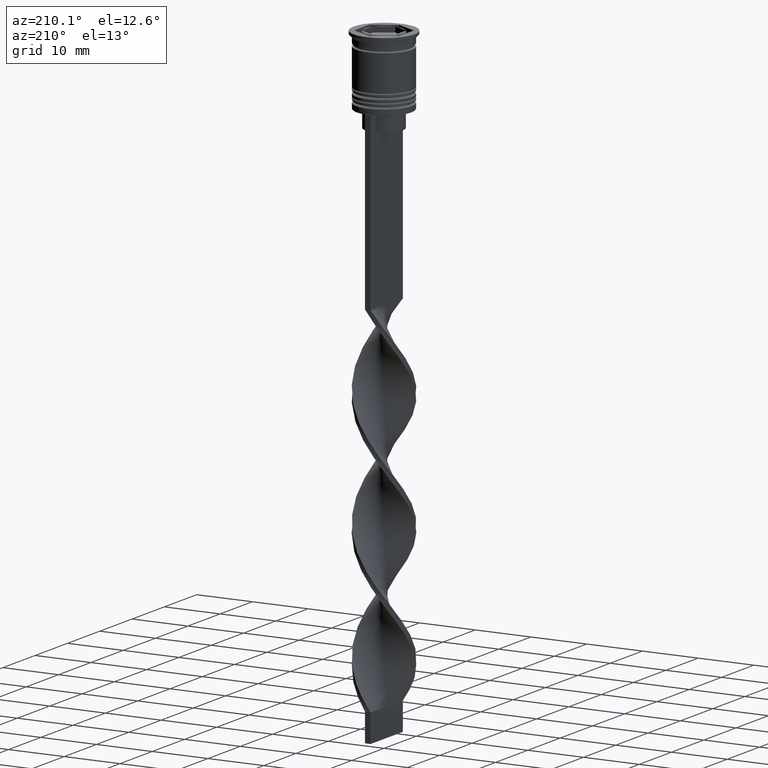
[diagram: clean part render]
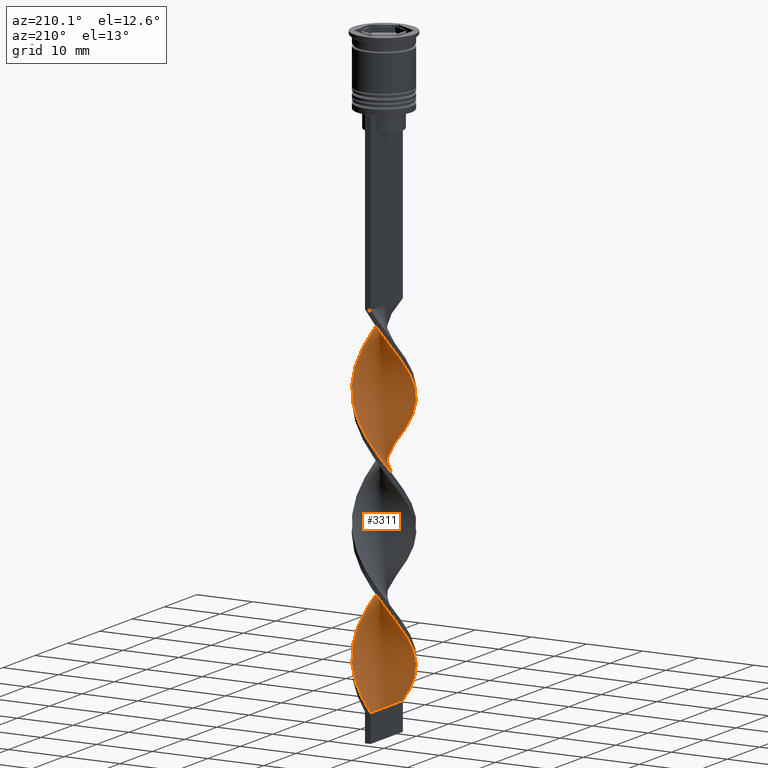
[diagram: same view with one face highlighted and labeled with its STEP entity id]
A machine part, auxiliary view. The second image highlights one B-rep face of the part: STEP entity #3311.
In plain terms, the highlighted face is a freeform B-spline surface patch.
Its self-contained STEP definition (entity closure, byte-faithful):
#8 = CARTESIAN_POINT ( 'NONE',  ( -4.104038128678483943, 2.962961240565979537, -70.57692307692306599 ) ) ;
#15 = CARTESIAN_POINT ( 'NONE',  ( -4.769828676396804745, -1.694403338218441357, -77.14102564102563520 ) ) ;
#29 = CARTESIAN_POINT ( 'NONE',  ( 1.107109916111302717, -4.939289008388868751, -86.98717948717948900 ) ) ;
#35 = CARTESIAN_POINT ( 'NONE',  ( -1.107109916111301828, 4.939289008388868751, -65.65384615384614619 ) ) ;
#40 = VERTEX_POINT ( 'NONE', #2713 ) ;
#50 = CARTESIAN_POINT ( 'NONE',  ( 5.036723384328412934, 0.5036723384328410935, -54.16666666666665719 ) ) ;
#69 = CARTESIAN_POINT ( 'NONE',  ( 4.104038128678483943, -2.962961240565977761, -91.91025641025643722 ) ) ;
#109 =( BOUNDED_CURVE ( )  B_SPLINE_CURVE ( 2, ( #1605, #1852, #2784, #3633, #2468, #2993, #422, #2167, #756, #2733, #151, #1291, #166, #2763, #1342, #1305, #1060, #1562, #2433, #2488, #3336, #2505, #3389, #288, #1396, #303, #2836, #2543, #1098, #1148, #2302, #3081, #2241, #8, #1411, #2595, #2000, #3095, #1373, #2574, #526, #3110, #1671, #3371, #3675, #510, #808, #2855, #3131, #2798, #2814, #252, #232, #29, #1167, #1112, #1974, #1959, #1654, #2519, #2256, #1425, #1728, #3652, #827, #545, #3355, #3148, #1447, #1694, #273, #3432, #2557, #795, #3689, #1128, #2275, #870, #2018 ),
 .UNSPECIFIED., .F., .T. ) 
 B_SPLINE_CURVE_WITH_KNOTS ( ( 3, 2, 2, 2, 2, 2, 2, 2, 2, 2, 2, 2, 2, 2, 2, 2, 2, 2, 2, 2, 2, 2, 2, 2, 2, 2, 2, 2, 2, 2, 2, 2, 2, 2, 2, 2, 2, 2, 2, 3 ),
 ( 0.000000000000000000, 0.01923076923076923184, 0.03846153846153846367, 0.05769230769230768857, 0.07692307692307692735, 0.09615384615384615918, 0.1153846153846153771, 0.1346153846153846090, 0.1538461538461538547, 0.1730769230769230449, 0.1923076923076923184, 0.2115384615384615363, 0.2307692307692307543, 0.2500000000000000000, 0.2692307692307692180, 0.2884615384615384359, 0.3076923076923077094, 0.3269230769230769273, 0.3461538461538460898, 0.3653846153846153633, 0.3846153846153846367, 0.4038461538461539102, 0.4230769230769230727, 0.4423076923076922906, 0.4615384615384615086, 0.4807692307692307820, 0.5000000000000000000, 0.5192307692307692735, 0.5384615384615384359, 0.5576923076923077094, 0.5769230769230768718, 0.5961538461538461453, 0.6153846153846154188, 0.6346153846153845812, 0.6538461538461538547, 0.6730769230769230171, 0.6923076923076921796, 0.7115384615384615641, 0.7307692307692307265, 0.7500000000000000000 ),
 .UNSPECIFIED. ) 
 CURVE ( )  GEOMETRIC_REPRESENTATION_ITEM ( )  RATIONAL_B_SPLINE_CURVE ( ( 1.000000000000000000, 0.9927088740980539727, 1.000000000000000000, 0.9927088740980539727, 1.000000000000000000, 0.9927088740980539727, 1.000000000000000000, 0.9927088740980539727, 1.000000000000000000, 0.9927088740980539727, 1.000000000000000000, 0.9927088740980539727, 1.000000000000000000, 0.9927088740980539727, 1.000000000000000000, 0.9927088740980539727, 1.000000000000000000, 0.9927088740980539727, 1.000000000000000000, 0.9927088740980539727, 1.000000000000000000, 0.9927088740980539727, 1.000000000000000000, 0.9927088740980539727, 1.000000000000000000, 0.9927088740980539727, 1.000000000000000000, 0.9927088740980539727, 1.000000000000000000, 0.9927088740980539727, 1.000000000000000000, 0.9927088740980539727, 1.000000000000000000, 0.9927088740980539727, 1.000000000000000000, 0.9927088740980539727, 1.000000000000000000, 0.9927088740980539727, 1.000000000000000000, 0.9927088740980539727, 1.000000000000000000, 0.9927088740980539727, 1.000000000000000000, 0.9927088740980539727, 1.000000000000000000, 0.9927088740980539727, 1.000000000000000000, 0.9927088740980539727, 1.000000000000000000, 0.9927088740980539727, 1.000000000000000000, 0.9927088740980539727, 1.000000000000000000, 0.9927088740980539727, 1.000000000000000000, 0.9927088740980539727, 1.000000000000000000, 0.9927088740980539727, 1.000000000000000000, 0.9927088740980539727, 1.000000000000000000, 0.9927088740980539727, 1.000000000000000000, 0.9927088740980539727, 1.000000000000000000, 0.9927088740980539727, 1.000000000000000000, 0.9927088740980539727, 1.000000000000000000, 0.9927088740980539727, 1.000000000000000000, 0.9927088740980539727, 1.000000000000000000, 0.9927088740980539727, 1.000000000000000000, 0.9927088740980539727, 1.000000000000000000, 0.9927088740980539727, 1.000000000000000000 ) ) 
 REPRESENTATION_ITEM ( '' )  );
#119 = CARTESIAN_POINT ( 'NONE',  ( -2.446670785446253049, 4.431260581638921003, -90.26923076923075939 ) ) ;
#141 = CARTESIAN_POINT ( 'NONE',  ( -4.769828676396804745, 1.694403338218444244, -95.19230769230769340 ) ) ;
#145 = CARTESIAN_POINT ( 'NONE',  ( -0.5000000000000006661, -5.000000000000000888, -64.83333333333332860 ) ) ;
#151 = CARTESIAN_POINT ( 'NONE',  ( 4.852383656948341617, -1.305516313869971246, -51.70512820512820440 ) ) ;
#157 = CARTESIAN_POINT ( 'NONE',  ( -4.225728863414810910, 2.786661774892328580, -50.88461538461538680 ) ) ;
#166 = CARTESIAN_POINT ( 'NONE',  ( 5.023812710617931110, -0.1063289642275889874, -53.34615384615383959 ) ) ;
#173 = CARTESIAN_POINT ( 'NONE',  ( 4.903276030362609283, -1.099037838325644945, -74.67948717948718240 ) ) ;
#193 = CARTESIAN_POINT ( 'NONE',  ( -1.315104909338222772, 4.888022846936949328, -45.96153846153845990 ) ) ;
#214 = CARTESIAN_POINT ( 'NONE',  ( -4.104038128678487496, -2.962961240565977761, -101.7564102564102484 ) ) ;
#228 = CARTESIAN_POINT ( 'NONE',  ( -5.010902036907449286, -0.7163302668880179302, -98.47435897435896379 ) ) ;
#232 = CARTESIAN_POINT ( 'NONE',  ( 0.5000000000000000000, -4.999999999999999112, -86.16666666666667140 ) ) ;
#237 = CARTESIAN_POINT ( 'NONE',  ( -2.446670785446253049, 4.431260581638921003, -47.60256410256408799 ) ) ;
#252 = CARTESIAN_POINT ( 'NONE',  ( -0.1071099161113053949, -5.060710991611129472, -85.34615384615385381 ) ) ;
#260 = CARTESIAN_POINT ( 'NONE',  ( -2.256988544190325019, 4.530813501584093572, -67.29487179487178139 ) ) ;
#267 = CARTESIAN_POINT ( 'NONE',  ( -4.852383656948343393, -1.305516313869969913, -99.29487179487178139 ) ) ;
#273 = CARTESIAN_POINT ( 'NONE',  ( 3.830886956102703245, 3.251815666602606569, -100.9358974358974308 ) ) ;
#279 = CARTESIAN_POINT ( 'NONE',  ( -5.010902036907448398, 0.7163302668880177082, -73.85897435897436480 ) ) ;
#285 = CARTESIAN_POINT ( 'NONE',  ( -3.275699201900569069, -3.859023582904238303, -103.3974358974358836 ) ) ;
#288 = CARTESIAN_POINT ( 'NONE',  ( 1.315104909338224104, 4.888022846936946664, -62.37179487179486870 ) ) ;
#296 = CARTESIAN_POINT ( 'NONE',  ( -5.023812710617931110, 0.1063289642275907221, -74.67948717948718240 ) ) ;
#303 = CARTESIAN_POINT ( 'NONE',  ( 0.1071099161113048537, 5.060710991611129472, -64.01282051282051100 ) ) ;
#312 = CARTESIAN_POINT ( 'NONE',  ( -2.766343873045448376, -4.194918542244166382, -104.2179487179487012 ) ) ;
#330 = CARTESIAN_POINT ( 'NONE',  ( -2.256988544190328572, -4.530813501584093572, -105.0384615384615330 ) ) ;
#364 = CARTESIAN_POINT ( 'NONE',  ( 5.023812710617931110, -0.1063289642275889874, -96.01282051282051100 ) ) ;
#385 = EDGE_CURVE ( 'NONE', #824, #3358, #673, .T. ) ;
#399 = CARTESIAN_POINT ( 'NONE',  ( 2.446670785446252161, -4.431260581638921892, -68.93589743589743080 ) ) ;
#407 = CARTESIAN_POINT ( 'NONE',  ( 1.107109916111302717, -4.939289008388868751, -86.98717948717948900 ) ) ;
#414 = CARTESIAN_POINT ( 'NONE',  ( -3.830886956102704133, 3.251815666602608346, -92.73076923076922640 ) ) ;
#417 = CARTESIAN_POINT ( 'NONE',  ( -4.769828676396803857, 1.694403338218444022, -52.52564102564102910 ) ) ;
#422 = CARTESIAN_POINT ( 'NONE',  ( 3.689868665289525396, -3.410992411735107588, -48.42307692307691269 ) ) ;
#423 = CARTESIAN_POINT ( 'NONE',  ( 4.903276030362607507, 1.099037838325641392, -97.65384615384614619 ) ) ;
#436 = CARTESIAN_POINT ( 'NONE',  ( -3.436045048790599132, 3.716969558312887667, -49.24358974358973740 ) ) ;
#441 = CARTESIAN_POINT ( 'NONE',  ( 1.315104909338221217, -4.888022846936949328, -67.29487179487178139 ) ) ;
#455 = CARTESIAN_POINT ( 'NONE',  ( 1.880887847392237688, -4.659641714287934278, -68.11538461538459899 ) ) ;
#460 = CARTESIAN_POINT ( 'NONE',  ( -4.104038128678487496, -2.962961240565977761, -59.08974358974358410 ) ) ;
#484 = CARTESIAN_POINT ( 'NONE',  ( -0.5000000000000006661, -5.000000000000000888, -107.5000000000000000 ) ) ;
#487 = CARTESIAN_POINT ( 'NONE',  ( -4.225728863414810910, 2.786661774892329024, -50.88461538461537970 ) ) ;
#505 = CARTESIAN_POINT ( 'NONE',  ( 3.436045048790597800, -3.716969558312888555, -70.57692307692306599 ) ) ;
#510 = CARTESIAN_POINT ( 'NONE',  ( -3.436045048790600909, -3.716969558312882782, -80.42307692307691980 ) ) ;
#516 = CARTESIAN_POINT ( 'NONE',  ( -4.497778769905806939, 2.240532556555386634, -51.70512820512820440 ) ) ;
#522 = CARTESIAN_POINT ( 'NONE',  ( -4.497778769905806939, 2.240532556555386634, -94.37179487179486159 ) ) ;
#526 = CARTESIAN_POINT ( 'NONE',  ( -4.903276030362609283, -1.099037838325638727, -76.32051282051281760 ) ) ;
#531 = CARTESIAN_POINT ( 'NONE',  ( -2.941357917118426535, -4.074115069975901449, -81.24358974358973740 ) ) ;
#539 = CARTESIAN_POINT ( 'NONE',  ( 3.830886956102704133, -3.251815666602608346, -71.39743589743588359 ) ) ;
#545 = CARTESIAN_POINT ( 'NONE',  ( 5.036723384328413822, 0.5036723384328410935, -96.83333333333332860 ) ) ;
#556 = CARTESIAN_POINT ( 'NONE',  ( -0.4999999999999993339, 4.999999999999999112, -64.83333333333332860 ) ) ;
#561 = CARTESIAN_POINT ( 'NONE',  ( 4.693865276989236612, 1.894702360851921119, -78.78205128205127039 ) ) ;
#572 = CARTESIAN_POINT ( 'NONE',  ( 5.023812710617931110, -0.1063289642275889874, -53.34615384615383959 ) ) ;
#578 = CARTESIAN_POINT ( 'NONE',  ( -0.5000000000000006661, -5.000000000000000888, -107.5000000000000000 ) ) ;
#589 = CARTESIAN_POINT ( 'NONE',  ( 2.941357917118426091, 4.074115069975901449, -59.91025641025640880 ) ) ;
#609 = CARTESIAN_POINT ( 'NONE',  ( -4.852383656948343393, -1.305516313869969913, -99.29487179487178139 ) ) ;
#673 = LINE ( 'NONE', #1825, #963 ) ;
#694 = CARTESIAN_POINT ( 'NONE',  ( -2.766343873045448376, -4.194918542244166382, -61.55128205128204399 ) ) ;
#698 = CARTESIAN_POINT ( 'NONE',  ( -4.398951702833861610, -2.428831800708950883, -58.26923076923076650 ) ) ;
#713 = CARTESIAN_POINT ( 'NONE',  ( 4.769828676396805633, -1.694403338218443800, -73.85897435897436480 ) ) ;
#732 = CARTESIAN_POINT ( 'NONE',  ( -4.852383656948343393, -1.305516313869969913, -56.62820512820513130 ) ) ;
#750 = CARTESIAN_POINT ( 'NONE',  ( 3.275699201900569513, 3.859023582904238303, -82.06410256410255499 ) ) ;
#756 = CARTESIAN_POINT ( 'NONE',  ( 4.398951702833859834, -2.428831800708950883, -50.06410256410256210 ) ) ;
#780 = CARTESIAN_POINT ( 'NONE',  ( -0.4999999999999997780, 1.666666666666666075, -107.5000000000000000 ) ) ;
#786 = CARTESIAN_POINT ( 'NONE',  ( -5.036723384328415598, 0.5036723384328417596, -96.83333333333332860 ) ) ;
#795 = CARTESIAN_POINT ( 'NONE',  ( 2.446670785446252605, 4.431260581638918339, -103.3974358974358836 ) ) ;
#804 = CARTESIAN_POINT ( 'NONE',  ( -1.315104909338222772, 4.888022846936949328, -88.62820512820512420 ) ) ;
#808 = CARTESIAN_POINT ( 'NONE',  ( -2.941357917118426535, -4.074115069975901449, -81.24358974358973740 ) ) ;
#815 = CARTESIAN_POINT ( 'NONE',  ( 3.830886956102703245, 3.251815666602606569, -58.26923076923076650 ) ) ;
#823 = CARTESIAN_POINT ( 'NONE',  ( -0.1071099161113027859, 5.060710991611131249, -86.98717948717948900 ) ) ;
#824 = VERTEX_POINT ( 'NONE', #3308 ) ;
#827 = CARTESIAN_POINT ( 'NONE',  ( 5.023812710617931110, -0.1063289642275889874, -96.01282051282051100 ) ) ;
#833 = CARTESIAN_POINT ( 'NONE',  ( -1.107109916111304937, -4.939289008388870528, -106.6794871794871682 ) ) ;
#840 = CARTESIAN_POINT ( 'NONE',  ( -2.941357917118425203, 4.074115069975904113, -91.08974358974359120 ) ) ;
#856 = CARTESIAN_POINT ( 'NONE',  ( 3.275699201900567736, -3.859023582904237415, -47.60256410256408799 ) ) ;
#870 = CARTESIAN_POINT ( 'NONE',  ( 0.1071099161113048537, 5.060710991611129472, -106.6794871794871824 ) ) ;
#877 = CARTESIAN_POINT ( 'NONE',  ( -1.880887847392241019, -4.659641714287931613, -82.88461538461537259 ) ) ;
#892 = CARTESIAN_POINT ( 'NONE',  ( -4.225728863414810910, -2.786661774892325028, -78.78205128205127039 ) ) ;
#911 = CARTESIAN_POINT ( 'NONE',  ( -0.7111074127247671850, -4.974366919274038068, -84.52564102564103621 ) ) ;
#931 = CARTESIAN_POINT ( 'NONE',  ( 1.880887847392238132, 4.659641714287932501, -104.2179487179487012 ) ) ;
#950 = CARTESIAN_POINT ( 'NONE',  ( 0.5000000000000000000, -4.999999999999999112, -86.16666666666667140 ) ) ;
#963 = VECTOR ( 'NONE', #1740, 1000.000000000000000 ) ;
#969 = CARTESIAN_POINT ( 'NONE',  ( -0.4999999999999993339, 4.999999999999999112, -107.5000000000000000 ) ) ;
#980 = CARTESIAN_POINT ( 'NONE',  ( -5.036723384328414710, 0.5036723384328417596, -54.16666666666665719 ) ) ;
#991 = CARTESIAN_POINT ( 'NONE',  ( 2.766343873045447044, -4.194918542244165494, -89.44871794871794179 ) ) ;
#998 = CARTESIAN_POINT ( 'NONE',  ( 0.7111074127247614118, -4.974366919274040733, -66.47435897435896379 ) ) ;
#1000 = CARTESIAN_POINT ( 'NONE',  ( -2.766343873045448376, -4.194918542244166382, -61.55128205128204399 ) ) ;
#1015 = CARTESIAN_POINT ( 'NONE',  ( -2.256988544190328572, -4.530813501584093572, -62.37179487179486870 ) ) ;
#1037 = CARTESIAN_POINT ( 'NONE',  ( 5.010902036907451063, 0.7163302668880160429, -77.14102564102563520 ) ) ;
#1060 = CARTESIAN_POINT ( 'NONE',  ( 4.497778769905805163, 2.240532556555384414, -56.62820512820513130 ) ) ;
#1069 = CARTESIAN_POINT ( 'NONE',  ( 4.225728863414809133, -2.786661774892331245, -72.21794871794871540 ) ) ;
#1089 = CARTESIAN_POINT ( 'NONE',  ( 1.682049230150819419, 4.735051254986480274, -84.52564102564103621 ) ) ;
#1098 = CARTESIAN_POINT ( 'NONE',  ( -1.682049230150812980, 4.735051254986481162, -66.47435897435896379 ) ) ;
#1104 = CARTESIAN_POINT ( 'NONE',  ( -0.1071099161113027859, 5.060710991611132137, -86.98717948717948900 ) ) ;
#1108 = CARTESIAN_POINT ( 'NONE',  ( -0.7111074127247628551, 4.974366919274039844, -87.80769230769230660 ) ) ;
#1112 = CARTESIAN_POINT ( 'NONE',  ( 2.256988544190326351, -4.530813501584092684, -88.62820512820512420 ) ) ;
#1120 = CARTESIAN_POINT ( 'NONE',  ( -4.398951702833861610, -2.428831800708950883, -100.9358974358974308 ) ) ;
#1124 = CARTESIAN_POINT ( 'NONE',  ( -2.446670785446253049, 4.431260581638920115, -90.26923076923077360 ) ) ;
#1128 = CARTESIAN_POINT ( 'NONE',  ( 1.315104909338224104, 4.888022846936946664, -105.0384615384615188 ) ) ;
#1135 = CARTESIAN_POINT ( 'NONE',  ( -5.023812710617932886, -0.1063289642275874608, -97.65384615384614619 ) ) ;
#1142 = CARTESIAN_POINT ( 'NONE',  ( -4.693865276989236612, -1.894702360851923784, -100.1153846153846132 ) ) ;
#1148 = CARTESIAN_POINT ( 'NONE',  ( -2.256988544190325019, 4.530813501584093572, -67.29487179487178139 ) ) ;
#1156 = CARTESIAN_POINT ( 'NONE',  ( 2.256988544190325907, -4.530813501584092684, -45.96153846153845279 ) ) ;
#1167 = CARTESIAN_POINT ( 'NONE',  ( 1.682049230150814534, -4.735051254986480274, -87.80769230769230660 ) ) ;
#1173 = CARTESIAN_POINT ( 'NONE',  ( -5.036723384328412934, -0.5036723384328404274, -75.49999999999998579 ) ) ;
#1187 = CARTESIAN_POINT ( 'NONE',  ( 4.769828676396803857, 1.694403338218442912, -55.80769230769230660 ) ) ;
#1210 = CARTESIAN_POINT ( 'NONE',  ( 4.852383656948341617, -1.305516313869971246, -94.37179487179486159 ) ) ;
#1229 = CARTESIAN_POINT ( 'NONE',  ( 4.769828676396803857, 1.694403338218442912, -98.47435897435896379 ) ) ;
#1249 = CARTESIAN_POINT ( 'NONE',  ( 4.398951702833859834, -2.428831800708950883, -92.73076923076922640 ) ) ;
#1259 = CARTESIAN_POINT ( 'NONE',  ( -2.941357917118425203, 4.074115069975904113, -91.08974358974359120 ) ) ;
#1269 = CARTESIAN_POINT ( 'NONE',  ( 4.225728863414809133, 2.786661774892327248, -100.1153846153846274 ) ) ;
#1280 = CARTESIAN_POINT ( 'NONE',  ( -0.7111074127247628551, 4.974366919274039844, -45.14102564102563520 ) ) ;
#1291 = CARTESIAN_POINT ( 'NONE',  ( 5.010902036907448398, -0.7163302668880181523, -52.52564102564102910 ) ) ;
#1298 = CARTESIAN_POINT ( 'NONE',  ( -1.315104909338222772, 4.888022846936949328, -45.96153846153845279 ) ) ;
#1305 = CARTESIAN_POINT ( 'NONE',  ( 4.769828676396803857, 1.694403338218442689, -55.80769230769230660 ) ) ;
#1311 = CARTESIAN_POINT ( 'NONE',  ( 5.023812710617932886, 0.1063289642275847546, -76.32051282051281760 ) ) ;
#1315 = CARTESIAN_POINT ( 'NONE',  ( -1.880887847392238132, 4.659641714287934278, -46.78205128205127750 ) ) ;
#1336 = CARTESIAN_POINT ( 'NONE',  ( -5.036723384328415598, 0.5036723384328417596, -54.16666666666666430 ) ) ;
#1342 = CARTESIAN_POINT ( 'NONE',  ( 4.903276030362607507, 1.099037838325641392, -54.98717948717948190 ) ) ;
#1351 = CARTESIAN_POINT ( 'NONE',  ( -0.5000000000000002220, -1.666666666666667851, -107.5000000000000000 ) ) ;
#1369 = CARTESIAN_POINT ( 'NONE',  ( -1.682049230150816532, -4.735051254986481162, -105.8589743589743506 ) ) ;
#1373 = CARTESIAN_POINT ( 'NONE',  ( -5.023812710617931110, 0.1063289642275907221, -74.67948717948718240 ) ) ;
#1378 = CARTESIAN_POINT ( 'NONE',  ( 1.107109916111305381, 4.939289008388870528, -85.34615384615383959 ) ) ;
#1396 = CARTESIAN_POINT ( 'NONE',  ( 0.7111074127247642984, 4.974366919274038068, -63.19230769230768630 ) ) ;
#1402 = CARTESIAN_POINT ( 'NONE',  ( -1.682049230150816532, -4.735051254986481162, -105.8589743589743506 ) ) ;
#1406 = CARTESIAN_POINT ( 'NONE',  ( 4.769828676396804745, -1.694403338218443578, -73.85897435897436480 ) ) ;
#1411 = CARTESIAN_POINT ( 'NONE',  ( -4.398951702833859834, 2.428831800708950883, -71.39743589743588359 ) ) ;
#1417 = CARTESIAN_POINT ( 'NONE',  ( -3.275699201900567736, 3.859023582904237415, -68.93589743589743080 ) ) ;
#1422 = CARTESIAN_POINT ( 'NONE',  ( 2.941357917118424758, -4.074115069975905001, -69.75641025641024839 ) ) ;
#1425 = CARTESIAN_POINT ( 'NONE',  ( 4.693865276989234836, -1.894702360851923340, -93.55128205128204399 ) ) ;
#1433 = CARTESIAN_POINT ( 'NONE',  ( -4.497778769905805163, -2.240532556555384858, -77.96153846153845279 ) ) ;
#1447 = CARTESIAN_POINT ( 'NONE',  ( 4.497778769905805163, 2.240532556555384414, -99.29487179487178139 ) ) ;
#1455 = CARTESIAN_POINT ( 'NONE',  ( 0.5000000000000000000, -4.999999999999999112, -43.50000000000000000 ) ) ;
#1471 = CARTESIAN_POINT ( 'NONE',  ( 4.852383656948341617, -1.305516313869971246, -51.70512820512820440 ) ) ;
#1509 = CARTESIAN_POINT ( 'NONE',  ( -0.1071099161113053949, -5.060710991611130360, -85.34615384615383959 ) ) ;
#1537 = CARTESIAN_POINT ( 'NONE',  ( -2.941357917118425203, 4.074115069975904113, -48.42307692307691269 ) ) ;
#1552 = CARTESIAN_POINT ( 'NONE',  ( -4.225728863414810910, 2.786661774892328580, -93.55128205128204399 ) ) ;
#1556 = CARTESIAN_POINT ( 'NONE',  ( -3.689868665289528060, -3.410992411735107144, -59.91025641025640880 ) ) ;
#1562 = CARTESIAN_POINT ( 'NONE',  ( 4.225728863414809133, 2.786661774892327692, -57.44871794871794890 ) ) ;
#1577 = CARTESIAN_POINT ( 'NONE',  ( 1.315104909338221217, -4.888022846936949328, -67.29487179487178139 ) ) ;
#1582 = CARTESIAN_POINT ( 'NONE',  ( -4.852383656948343393, -1.305516313869969913, -56.62820512820513130 ) ) ;
#1595 = CARTESIAN_POINT ( 'NONE',  ( 5.036723384328414710, -0.5036723384328424258, -75.49999999999998579 ) ) ;
#1600 = CARTESIAN_POINT ( 'NONE',  ( -2.256988544190328572, -4.530813501584093572, -62.37179487179486870 ) ) ;
#1605 = CARTESIAN_POINT ( 'NONE',  ( 0.5000000000000000000, -4.999999999999999112, -43.50000000000000000 ) ) ;
#1650 = CARTESIAN_POINT ( 'NONE',  ( 5.023812710617932886, 0.1063289642275847546, -76.32051282051281760 ) ) ;
#1654 = CARTESIAN_POINT ( 'NONE',  ( 3.689868665289525396, -3.410992411735107588, -91.08974358974359120 ) ) ;
#1659 = CARTESIAN_POINT ( 'NONE',  ( 2.941357917118424758, -4.074115069975905001, -69.75641025641024839 ) ) ;
#1666 = CARTESIAN_POINT ( 'NONE',  ( -2.766343873045448376, -4.194918542244166382, -104.2179487179487012 ) ) ;
#1671 = CARTESIAN_POINT ( 'NONE',  ( -4.497778769905805163, -2.240532556555384858, -77.96153846153845279 ) ) ;
#1676 = CARTESIAN_POINT ( 'NONE',  ( 2.766343873045447044, -4.194918542244165494, -46.78205128205127750 ) ) ;
#1688 = CARTESIAN_POINT ( 'NONE',  ( -4.398951702833861610, -2.428831800708950883, -100.9358974358974308 ) ) ;
#1694 = CARTESIAN_POINT ( 'NONE',  ( 4.225728863414809133, 2.786661774892327692, -100.1153846153846132 ) ) ;
#1701 = CARTESIAN_POINT ( 'NONE',  ( -2.766343873045446600, 4.194918542244165494, -68.11538461538459899 ) ) ;
#1706 = CARTESIAN_POINT ( 'NONE',  ( -4.225728863414810910, 2.786661774892329024, -93.55128205128204399 ) ) ;
#1717 = CARTESIAN_POINT ( 'NONE',  ( -4.693865276989236612, -1.894702360851923562, -100.1153846153846274 ) ) ;
#1724 = CARTESIAN_POINT ( 'NONE',  ( 1.107109916111305603, 4.939289008388870528, -85.34615384615385381 ) ) ;
#1728 = CARTESIAN_POINT ( 'NONE',  ( 4.852383656948341617, -1.305516313869971246, -94.37179487179486159 ) ) ;
#1736 = CARTESIAN_POINT ( 'NONE',  ( -1.682049230150812980, 4.735051254986481162, -66.47435897435896379 ) ) ;
#1740 = DIRECTION ( 'NONE',  ( 0.000000000000000000, 1.000000000000000000, 0.000000000000000000 ) ) ;
#1759 = CARTESIAN_POINT ( 'NONE',  ( -3.830886956102704577, -3.251815666602606125, -79.60256410256410220 ) ) ;
#1798 = CARTESIAN_POINT ( 'NONE',  ( 0.1071099161113048398, 5.060710991611130360, -106.6794871794871682 ) ) ;
#1825 = CARTESIAN_POINT ( 'NONE',  ( 0.5000000000000000000, -4.999999999999999112, -43.50000000000000000 ) ) ;
#1828 = CARTESIAN_POINT ( 'NONE',  ( 3.689868665289528504, 3.410992411735106700, -81.24358974358973740 ) ) ;
#1844 = CARTESIAN_POINT ( 'NONE',  ( -1.682049230150816532, -4.735051254986481162, -63.19230769230768630 ) ) ;
#1846 = CARTESIAN_POINT ( 'NONE',  ( -0.7111074127247628551, 4.974366919274039844, -45.14102564102563520 ) ) ;
#1852 = CARTESIAN_POINT ( 'NONE',  ( 1.107109916111302717, -4.939289008388868751, -44.32051282051282470 ) ) ;
#1860 = CARTESIAN_POINT ( 'NONE',  ( 4.693865276989236612, 1.894702360851920897, -78.78205128205127039 ) ) ;
#1862 = CARTESIAN_POINT ( 'NONE',  ( -0.1071099161113027859, 5.060710991611131249, -44.32051282051282470 ) ) ;
#1883 = CARTESIAN_POINT ( 'NONE',  ( 0.1071099161113016063, -5.060710991611132137, -65.65384615384614619 ) ) ;
#1886 = CARTESIAN_POINT ( 'NONE',  ( -2.941357917118425203, 4.074115069975904113, -48.42307692307691269 ) ) ;
#1898 = CARTESIAN_POINT ( 'NONE',  ( 2.256988544190329016, 4.530813501584093572, -83.70512820512820440 ) ) ;
#1916 = EDGE_CURVE ( 'NONE', #3410, #40, #2209, .T. ) ;
#1932 = CARTESIAN_POINT ( 'NONE',  ( -0.4999999999999993339, 4.999999999999999112, -107.5000000000000000 ) ) ;
#1936 = CARTESIAN_POINT ( 'NONE',  ( 2.766343873045451041, 4.194918542244163717, -82.88461538461537259 ) ) ;
#1954 = CARTESIAN_POINT ( 'NONE',  ( 5.036723384328415598, -0.5036723384328424258, -75.50000000000000000 ) ) ;
#1959 = CARTESIAN_POINT ( 'NONE',  ( 3.275699201900567292, -3.859023582904237415, -90.26923076923077360 ) ) ;
#1965 = CARTESIAN_POINT ( 'NONE',  ( 3.436045048790599132, 3.716969558312884558, -59.08974358974359120 ) ) ;
#1970 = CARTESIAN_POINT ( 'NONE',  ( 4.398951702833861610, 2.428831800708950439, -79.60256410256410220 ) ) ;
#1974 = CARTESIAN_POINT ( 'NONE',  ( 2.766343873045447044, -4.194918542244165494, -89.44871794871794179 ) ) ;
#1980 = CARTESIAN_POINT ( 'NONE',  ( 1.315104909338224326, 4.888022846936946664, -62.37179487179486870 ) ) ;
#1993 = CARTESIAN_POINT ( 'NONE',  ( 4.903276030362609283, -1.099037838325644945, -74.67948717948718240 ) ) ;
#2000 = CARTESIAN_POINT ( 'NONE',  ( -4.852383656948341617, 1.305516313869971912, -73.03846153846153300 ) ) ;
#2007 = CARTESIAN_POINT ( 'NONE',  ( 0.7111074127247642984, 4.974366919274038068, -63.19230769230768630 ) ) ;
#2014 = CARTESIAN_POINT ( 'NONE',  ( -3.689868665289528060, -3.410992411735107144, -102.5769230769230660 ) ) ;
#2018 = CARTESIAN_POINT ( 'NONE',  ( -0.4999999999999993339, 4.999999999999999112, -107.5000000000000000 ) ) ;
#2024 = CARTESIAN_POINT ( 'NONE',  ( 3.689868665289525396, -3.410992411735107588, -48.42307692307691269 ) ) ;
#2041 = CARTESIAN_POINT ( 'NONE',  ( 1.107109916111302717, -4.939289008388868751, -44.32051282051282470 ) ) ;
#2062 = CARTESIAN_POINT ( 'NONE',  ( 1.682049230150814534, -4.735051254986480274, -87.80769230769230660 ) ) ;
#2081 = CARTESIAN_POINT ( 'NONE',  ( 0.7111074127247642984, 4.974366919274038068, -105.8589743589743506 ) ) ;
#2089 = FACE_OUTER_BOUND ( 'NONE', #2353, .T. ) ;
#2128 = CARTESIAN_POINT ( 'NONE',  ( -4.903276030362609283, 1.099037838325643168, -53.34615384615383959 ) ) ;
#2131 = CARTESIAN_POINT ( 'NONE',  ( -4.497778769905806939, 2.240532556555386634, -51.70512820512820440 ) ) ;
#2137 = CARTESIAN_POINT ( 'NONE',  ( 2.256988544190325907, -4.530813501584092684, -88.62820512820513841 ) ) ;
#2143 = CARTESIAN_POINT ( 'NONE',  ( 4.225728863414809133, -2.786661774892330801, -72.21794871794871540 ) ) ;
#2148 = CARTESIAN_POINT ( 'NONE',  ( 0.5000000000000000000, 5.000000000000000888, -43.50000000000000000 ) ) ;
#2160 = CARTESIAN_POINT ( 'NONE',  ( 3.436045048790597800, -3.716969558312888555, -70.57692307692306599 ) ) ;
#2162 = CARTESIAN_POINT ( 'NONE',  ( -3.436045048790599132, 3.716969558312887667, -49.24358974358974450 ) ) ;
#2167 = CARTESIAN_POINT ( 'NONE',  ( 4.104038128678484831, -2.962961240565978205, -49.24358974358974450 ) ) ;
#2182 = CARTESIAN_POINT ( 'NONE',  ( 4.852383656948343393, 1.305516313869970801, -77.96153846153845279 ) ) ;
#2209 = B_SPLINE_CURVE_WITH_KNOTS ( 'NONE', 3,
 ( #484, #1351, #780, #1932 ),
 .UNSPECIFIED., .F., .F.,
 ( 4, 4 ),
 ( 0.000000000000000000, 1.000000000000000000 ),
 .UNSPECIFIED. ) ;
#2210 = CARTESIAN_POINT ( 'NONE',  ( 0.5000000000000000000, 5.000000000000000888, -86.16666666666667140 ) ) ;
#2218 = CARTESIAN_POINT ( 'NONE',  ( -0.5000000000000006661, -5.000000000000000888, -107.5000000000000000 ) ) ;
#2234 = CARTESIAN_POINT ( 'NONE',  ( -4.769828676396803857, 1.694403338218444022, -95.19230769230769340 ) ) ;
#2241 = CARTESIAN_POINT ( 'NONE',  ( -3.689868665289524952, 3.410992411735108476, -69.75641025641024839 ) ) ;
#2246 = CARTESIAN_POINT ( 'NONE',  ( -0.7111074127247628551, 4.974366919274039844, -87.80769230769230660 ) ) ;
#2253 = ORIENTED_EDGE ( 'NONE', *, *, #2758, .T. ) ;
#2256 = CARTESIAN_POINT ( 'NONE',  ( 4.398951702833859834, -2.428831800708950883, -92.73076923076922640 ) ) ;
#2265 = CARTESIAN_POINT ( 'NONE',  ( 1.682049230150814534, -4.735051254986480274, -45.14102564102563520 ) ) ;
#2272 = CARTESIAN_POINT ( 'NONE',  ( -3.436045048790599132, 3.716969558312887667, -91.91025641025643722 ) ) ;
#2275 = CARTESIAN_POINT ( 'NONE',  ( 0.7111074127247642984, 4.974366919274038068, -105.8589743589743506 ) ) ;
#2282 = CARTESIAN_POINT ( 'NONE',  ( -4.903276030362609283, 1.099037838325643168, -96.01282051282051100 ) ) ;
#2296 = CARTESIAN_POINT ( 'NONE',  ( -4.903276030362609283, 1.099037838325643168, -96.01282051282051100 ) ) ;
#2302 = CARTESIAN_POINT ( 'NONE',  ( -2.766343873045446600, 4.194918542244165494, -68.11538461538459899 ) ) ;
#2308 = CARTESIAN_POINT ( 'NONE',  ( -4.398951702833859834, 2.428831800708950883, -71.39743589743588359 ) ) ;
#2321 = CARTESIAN_POINT ( 'NONE',  ( 4.497778769905805163, 2.240532556555384414, -56.62820512820513130 ) ) ;
#2336 = CARTESIAN_POINT ( 'NONE',  ( 4.225728863414809133, 2.786661774892327248, -57.44871794871794890 ) ) ;
#2353 = EDGE_LOOP ( 'NONE', ( #2850, #2253, #2416, #2369 ) ) ;
#2358 = CARTESIAN_POINT ( 'NONE',  ( -1.315104909338224770, -4.888022846936946664, -83.70512820512820440 ) ) ;
#2369 = ORIENTED_EDGE ( 'NONE', *, *, #3083, .F. ) ;
#2374 = CARTESIAN_POINT ( 'NONE',  ( 3.275699201900567736, -3.859023582904237415, -90.26923076923075939 ) ) ;
#2393 = CARTESIAN_POINT ( 'NONE',  ( 4.693865276989234836, -1.894702360851923117, -93.55128205128204399 ) ) ;
#2401 = CARTESIAN_POINT ( 'NONE',  ( -1.880887847392238132, 4.659641714287934278, -46.78205128205127750 ) ) ;
#2414 = CARTESIAN_POINT ( 'NONE',  ( 0.5000000000000000000, 5.000000000000000888, -43.50000000000000000 ) ) ;
#2416 = ORIENTED_EDGE ( 'NONE', *, *, #1916, .F. ) ;
#2423 = CARTESIAN_POINT ( 'NONE',  ( -0.5000000000000006661, -5.000000000000000888, -64.83333333333332860 ) ) ;
#2426 = CARTESIAN_POINT ( 'NONE',  ( -1.107109916111305159, -4.939289008388870528, -64.01282051282051100 ) ) ;
#2431 =( BOUNDED_CURVE ( )  B_SPLINE_CURVE ( 2, ( #2148, #1862, #1846, #193, #1315, #3316, #1886, #2162, #3026, #487, #2131, #417, #3297, #1336, #2729, #3264, #1582, #2757, #698, #460, #1556, #2988, #1000, #1600, #2708, #2426, #145, #3560, #3007, #441, #2810, #3401, #1422, #505, #539, #1069, #3091, #1406, #1993, #1954, #1650, #3629, #2794, #561, #1970, #3143, #2553, #3645, #1936, #3127, #1089, #1724, #2210, #823, #1108, #804, #3685, #1124, #840, #2272, #3077, #1706, #522, #2234, #2296, #786, #2849, #228, #267, #1142, #1688, #214, #2014, #285, #1666, #2571, #1369, #3427, #578 ),
 .UNSPECIFIED., .F., .T. ) 
 B_SPLINE_CURVE_WITH_KNOTS ( ( 3, 2, 2, 2, 2, 2, 2, 2, 2, 2, 2, 2, 2, 2, 2, 2, 2, 2, 2, 2, 2, 2, 2, 2, 2, 2, 2, 2, 2, 2, 2, 2, 2, 2, 2, 2, 2, 2, 2, 3 ),
 ( 0.000000000000000000, 0.01923076923076923184, 0.03846153846153846367, 0.05769230769230768857, 0.07692307692307692735, 0.09615384615384615918, 0.1153846153846153771, 0.1346153846153846090, 0.1538461538461538547, 0.1730769230769230449, 0.1923076923076923184, 0.2115384615384615363, 0.2307692307692307543, 0.2500000000000000000, 0.2692307692307692180, 0.2884615384615384359, 0.3076923076923077094, 0.3269230769230769273, 0.3461538461538460898, 0.3653846153846153633, 0.3846153846153846367, 0.4038461538461539102, 0.4230769230769230727, 0.4423076923076922906, 0.4615384615384615086, 0.4807692307692307820, 0.5000000000000000000, 0.5192307692307692735, 0.5384615384615384359, 0.5576923076923077094, 0.5769230769230768718, 0.5961538461538461453, 0.6153846153846154188, 0.6346153846153845812, 0.6538461538461538547, 0.6730769230769230171, 0.6923076923076921796, 0.7115384615384615641, 0.7307692307692307265, 0.7500000000000000000 ),
 .UNSPECIFIED. ) 
 CURVE ( )  GEOMETRIC_REPRESENTATION_ITEM ( )  RATIONAL_B_SPLINE_CURVE ( ( 1.000000000000000000, 0.9927088740980539727, 1.000000000000000000, 0.9927088740980539727, 1.000000000000000000, 0.9927088740980539727, 1.000000000000000000, 0.9927088740980539727, 1.000000000000000000, 0.9927088740980539727, 1.000000000000000000, 0.9927088740980539727, 1.000000000000000000, 0.9927088740980539727, 1.000000000000000000, 0.9927088740980539727, 1.000000000000000000, 0.9927088740980539727, 1.000000000000000000, 0.9927088740980539727, 1.000000000000000000, 0.9927088740980539727, 1.000000000000000000, 0.9927088740980539727, 1.000000000000000000, 0.9927088740980539727, 1.000000000000000000, 0.9927088740980539727, 1.000000000000000000, 0.9927088740980539727, 1.000000000000000000, 0.9927088740980539727, 1.000000000000000000, 0.9927088740980539727, 1.000000000000000000, 0.9927088740980539727, 1.000000000000000000, 0.9927088740980539727, 1.000000000000000000, 0.9927088740980539727, 1.000000000000000000, 0.9927088740980539727, 1.000000000000000000, 0.9927088740980539727, 1.000000000000000000, 0.9927088740980539727, 1.000000000000000000, 0.9927088740980539727, 1.000000000000000000, 0.9927088740980539727, 1.000000000000000000, 0.9927088740980539727, 1.000000000000000000, 0.9927088740980539727, 1.000000000000000000, 0.9927088740980539727, 1.000000000000000000, 0.9927088740980539727, 1.000000000000000000, 0.9927088740980539727, 1.000000000000000000, 0.9927088740980539727, 1.000000000000000000, 0.9927088740980539727, 1.000000000000000000, 0.9927088740980539727, 1.000000000000000000, 0.9927088740980539727, 1.000000000000000000, 0.9927088740980539727, 1.000000000000000000, 0.9927088740980539727, 1.000000000000000000, 0.9927088740980539727, 1.000000000000000000, 0.9927088740980539727, 1.000000000000000000, 0.9927088740980539727, 1.000000000000000000 ) ) 
 REPRESENTATION_ITEM ( '' )  );
#2433 = CARTESIAN_POINT ( 'NONE',  ( 3.830886956102703245, 3.251815666602606569, -58.26923076923076650 ) ) ;
#2443 = CARTESIAN_POINT ( 'NONE',  ( -5.023812710617932886, -0.1063289642275874608, -54.98717948717948190 ) ) ;
#2462 = CARTESIAN_POINT ( 'NONE',  ( -3.689868665289528060, -3.410992411735107144, -59.91025641025640880 ) ) ;
#2468 = CARTESIAN_POINT ( 'NONE',  ( 2.766343873045447044, -4.194918542244165494, -46.78205128205127750 ) ) ;
#2488 = CARTESIAN_POINT ( 'NONE',  ( 3.436045048790599132, 3.716969558312884558, -59.08974358974358410 ) ) ;
#2505 = CARTESIAN_POINT ( 'NONE',  ( 2.446670785446252605, 4.431260581638918339, -60.73076923076922640 ) ) ;
#2519 = CARTESIAN_POINT ( 'NONE',  ( 4.104038128678484831, -2.962961240565978205, -91.91025641025643722 ) ) ;
#2526 = CARTESIAN_POINT ( 'NONE',  ( -3.275699201900569069, -3.859023582904238303, -60.73076923076922640 ) ) ;
#2543 = CARTESIAN_POINT ( 'NONE',  ( -1.107109916111301606, 4.939289008388868751, -65.65384615384614619 ) ) ;
#2548 = CARTESIAN_POINT ( 'NONE',  ( -3.689868665289524952, 3.410992411735108476, -69.75641025641024839 ) ) ;
#2553 = CARTESIAN_POINT ( 'NONE',  ( 3.689868665289528504, 3.410992411735106700, -81.24358974358973740 ) ) ;
#2557 = CARTESIAN_POINT ( 'NONE',  ( 2.941357917118426091, 4.074115069975901449, -102.5769230769230660 ) ) ;
#2565 = CARTESIAN_POINT ( 'NONE',  ( 4.398951702833859834, -2.428831800708950883, -50.06410256410256210 ) ) ;
#2571 = CARTESIAN_POINT ( 'NONE',  ( -2.256988544190328572, -4.530813501584093572, -105.0384615384615188 ) ) ;
#2574 = CARTESIAN_POINT ( 'NONE',  ( -5.036723384328413822, -0.5036723384328405384, -75.50000000000000000 ) ) ;
#2582 = CARTESIAN_POINT ( 'NONE',  ( -3.436045048790600909, -3.716969558312882782, -80.42307692307691980 ) ) ;
#2595 = CARTESIAN_POINT ( 'NONE',  ( -4.693865276989233060, 1.894702360851926004, -72.21794871794871540 ) ) ;
#2601 = CARTESIAN_POINT ( 'NONE',  ( 4.104038128678483943, -2.962961240565977761, -49.24358974358973740 ) ) ;
#2618 = CARTESIAN_POINT ( 'NONE',  ( -4.104038128678486608, -2.962961240565977317, -101.7564102564102484 ) ) ;
#2660 = CARTESIAN_POINT ( 'NONE',  ( 3.436045048790599132, 3.716969558312884558, -101.7564102564102484 ) ) ;
#2675 = CARTESIAN_POINT ( 'NONE',  ( 2.941357917118426091, 4.074115069975901449, -102.5769230769230660 ) ) ;
#2684 = CARTESIAN_POINT ( 'NONE',  ( -1.107109916111304937, -4.939289008388870528, -64.01282051282051100 ) ) ;
#2692 =( BOUNDED_SURFACE ( )  B_SPLINE_SURFACE ( 1, 2, ( 
 ( #3590, #3292, #1280, #1298, #2401, #237, #1537, #436, #3538, #157, #516, #3002, #2128, #980, #2443, #3572, #732, #3261, #2740, #3557, #2462, #2526, #694, #1015, #1844, #2684, #2423, #1883, #998, #1577, #455, #399, #1659, #2160, #3278, #2143, #3023, #713, #173, #1595, #1311, #1037, #2182, #1860, #3314, #2804, #1828, #750, #2724, #1898, #3087, #1378, #3660, #1104, #2246, #3379, #2968, #119, #1259, #2985, #414, #1552, #2704, #141, #2282, #2900, #1135, #3154, #609, #1717, #1120, #2618, #3118, #3697, #312, #330, #1402, #833, #3415 ),
 ( #1455, #2041, #2265, #1156, #1676, #856, #2024, #2601, #2565, #3396, #1471, #3680, #572, #50, #3173, #1187, #2321, #2336, #815, #1965, #589, #2863, #2844, #1980, #2007, #2821, #556, #35, #1736, #260, #1701, #1417, #2548, #3452, #2308, #3100, #2877, #279, #296, #1173, #3137, #15, #1433, #892, #1759, #2582, #531, #3438, #877, #2358, #911, #1509, #950, #407, #2062, #2137, #991, #2374, #2994, #69, #1249, #2393, #1210, #2916, #364, #3197, #423, #1229, #3492, #1269, #3530, #2660, #2675, #3272, #931, #3551, #2081, #1798, #969 ) ),
 .UNSPECIFIED., .F., .F., .F. ) 
 B_SPLINE_SURFACE_WITH_KNOTS ( ( 2, 2 ),
 ( 3, 2, 2, 2, 2, 2, 2, 2, 2, 2, 2, 2, 2, 2, 2, 2, 2, 2, 2, 2, 2, 2, 2, 2, 2, 2, 2, 2, 2, 2, 2, 2, 2, 2, 2, 2, 2, 2, 2, 3 ),
 ( 0.000000000000000000, 1.000000000000000000 ),
 ( 0.000000000000000000, 0.01923076923076923184, 0.03846153846153846367, 0.05769230769230769551, 0.07692307692307692735, 0.09615384615384615918, 0.1153846153846153910, 0.1346153846153846090, 0.1538461538461538547, 0.1730769230769230727, 0.1923076923076923184, 0.2115384615384615363, 0.2307692307692307820, 0.2500000000000000000, 0.2692307692307692180, 0.2884615384615384359, 0.3076923076923077094, 0.3269230769230769273, 0.3461538461538461453, 0.3653846153846153633, 0.3846153846153846367, 0.4038461538461538547, 0.4230769230769230727, 0.4423076923076922906, 0.4615384615384615641, 0.4807692307692307820, 0.5000000000000000000, 0.5192307692307692735, 0.5384615384615384359, 0.5576923076923077094, 0.5769230769230768718, 0.5961538461538461453, 0.6153846153846154188, 0.6346153846153845812, 0.6538461538461538547, 0.6730769230769231282, 0.6923076923076922906, 0.7115384615384615641, 0.7307692307692307265, 0.7500000000000000000 ),
 .UNSPECIFIED. ) 
 GEOMETRIC_REPRESENTATION_ITEM ( )  RATIONAL_B_SPLINE_SURFACE ( (
 ( 1.000000000000000000, 0.9927088740980539727, 1.000000000000000000, 0.9927088740980539727, 1.000000000000000000, 0.9927088740980539727, 1.000000000000000000, 0.9927088740980539727, 1.000000000000000000, 0.9927088740980539727, 1.000000000000000000, 0.9927088740980539727, 1.000000000000000000, 0.9927088740980539727, 1.000000000000000000, 0.9927088740980539727, 1.000000000000000000, 0.9927088740980539727, 1.000000000000000000, 0.9927088740980539727, 1.000000000000000000, 0.9927088740980539727, 1.000000000000000000, 0.9927088740980539727, 1.000000000000000000, 0.9927088740980539727, 1.000000000000000000, 0.9927088740980539727, 1.000000000000000000, 0.9927088740980539727, 1.000000000000000000, 0.9927088740980539727, 1.000000000000000000, 0.9927088740980539727, 1.000000000000000000, 0.9927088740980539727, 1.000000000000000000, 0.9927088740980539727, 1.000000000000000000, 0.9927088740980539727, 1.000000000000000000, 0.9927088740980539727, 1.000000000000000000, 0.9927088740980539727, 1.000000000000000000, 0.9927088740980539727, 1.000000000000000000, 0.9927088740980539727, 1.000000000000000000, 0.9927088740980539727, 1.000000000000000000, 0.9927088740980539727, 1.000000000000000000, 0.9927088740980539727, 1.000000000000000000, 0.9927088740980539727, 1.000000000000000000, 0.9927088740980539727, 1.000000000000000000, 0.9927088740980539727, 1.000000000000000000, 0.9927088740980539727, 1.000000000000000000, 0.9927088740980539727, 1.000000000000000000, 0.9927088740980539727, 1.000000000000000000, 0.9927088740980539727, 1.000000000000000000, 0.9927088740980539727, 1.000000000000000000, 0.9927088740980539727, 1.000000000000000000, 0.9927088740980539727, 1.000000000000000000, 0.9927088740980539727, 1.000000000000000000, 0.9927088740980539727, 1.000000000000000000),
 ( 1.000000000000000000, 0.9927088740980539727, 1.000000000000000000, 0.9927088740980539727, 1.000000000000000000, 0.9927088740980539727, 1.000000000000000000, 0.9927088740980539727, 1.000000000000000000, 0.9927088740980539727, 1.000000000000000000, 0.9927088740980539727, 1.000000000000000000, 0.9927088740980539727, 1.000000000000000000, 0.9927088740980539727, 1.000000000000000000, 0.9927088740980539727, 1.000000000000000000, 0.9927088740980539727, 1.000000000000000000, 0.9927088740980539727, 1.000000000000000000, 0.9927088740980539727, 1.000000000000000000, 0.9927088740980539727, 1.000000000000000000, 0.9927088740980539727, 1.000000000000000000, 0.9927088740980539727, 1.000000000000000000, 0.9927088740980539727, 1.000000000000000000, 0.9927088740980539727, 1.000000000000000000, 0.9927088740980539727, 1.000000000000000000, 0.9927088740980539727, 1.000000000000000000, 0.9927088740980539727, 1.000000000000000000, 0.9927088740980539727, 1.000000000000000000, 0.9927088740980539727, 1.000000000000000000, 0.9927088740980539727, 1.000000000000000000, 0.9927088740980539727, 1.000000000000000000, 0.9927088740980539727, 1.000000000000000000, 0.9927088740980539727, 1.000000000000000000, 0.9927088740980539727, 1.000000000000000000, 0.9927088740980539727, 1.000000000000000000, 0.9927088740980539727, 1.000000000000000000, 0.9927088740980539727, 1.000000000000000000, 0.9927088740980539727, 1.000000000000000000, 0.9927088740980539727, 1.000000000000000000, 0.9927088740980539727, 1.000000000000000000, 0.9927088740980539727, 1.000000000000000000, 0.9927088740980539727, 1.000000000000000000, 0.9927088740980539727, 1.000000000000000000, 0.9927088740980539727, 1.000000000000000000, 0.9927088740980539727, 1.000000000000000000, 0.9927088740980539727, 1.000000000000000000) ) ) 
 REPRESENTATION_ITEM ( '' )  SURFACE ( )  );
#2704 = CARTESIAN_POINT ( 'NONE',  ( -4.497778769905806939, 2.240532556555386634, -94.37179487179486159 ) ) ;
#2708 = CARTESIAN_POINT ( 'NONE',  ( -1.682049230150816532, -4.735051254986481162, -63.19230769230768630 ) ) ;
#2713 = CARTESIAN_POINT ( 'NONE',  ( -0.4999999999999993339, 4.999999999999999112, -107.5000000000000000 ) ) ;
#2724 = CARTESIAN_POINT ( 'NONE',  ( 2.766343873045451041, 4.194918542244163717, -82.88461538461537259 ) ) ;
#2729 = CARTESIAN_POINT ( 'NONE',  ( -5.023812710617932886, -0.1063289642275874608, -54.98717948717948190 ) ) ;
#2733 = CARTESIAN_POINT ( 'NONE',  ( 4.693865276989234836, -1.894702360851923340, -50.88461538461537970 ) ) ;
#2740 = CARTESIAN_POINT ( 'NONE',  ( -4.398951702833861610, -2.428831800708950883, -58.26923076923076650 ) ) ;
#2757 = CARTESIAN_POINT ( 'NONE',  ( -4.693865276989236612, -1.894702360851923784, -57.44871794871794890 ) ) ;
#2758 = EDGE_CURVE ( 'NONE', #824, #40, #109, .T. ) ;
#2763 = CARTESIAN_POINT ( 'NONE',  ( 5.036723384328413822, 0.5036723384328410935, -54.16666666666666430 ) ) ;
#2784 = CARTESIAN_POINT ( 'NONE',  ( 1.682049230150814534, -4.735051254986480274, -45.14102564102563520 ) ) ;
#2794 = CARTESIAN_POINT ( 'NONE',  ( 4.852383656948343393, 1.305516313869970801, -77.96153846153845279 ) ) ;
#2798 = CARTESIAN_POINT ( 'NONE',  ( -1.315104909338224548, -4.888022846936946664, -83.70512820512820440 ) ) ;
#2804 = CARTESIAN_POINT ( 'NONE',  ( 4.104038128678487496, 2.962961240565975096, -80.42307692307691980 ) ) ;
#2810 = CARTESIAN_POINT ( 'NONE',  ( 1.880887847392237688, -4.659641714287934278, -68.11538461538459899 ) ) ;
#2814 = CARTESIAN_POINT ( 'NONE',  ( -0.7111074127247671850, -4.974366919274038068, -84.52564102564103621 ) ) ;
#2821 = CARTESIAN_POINT ( 'NONE',  ( 0.1071099161113048398, 5.060710991611130360, -64.01282051282051100 ) ) ;
#2836 = CARTESIAN_POINT ( 'NONE',  ( -0.4999999999999993339, 4.999999999999999112, -64.83333333333332860 ) ) ;
#2844 = CARTESIAN_POINT ( 'NONE',  ( 1.880887847392238132, 4.659641714287932501, -61.55128205128204399 ) ) ;
#2849 = CARTESIAN_POINT ( 'NONE',  ( -5.023812710617932886, -0.1063289642275874608, -97.65384615384614619 ) ) ;
#2850 = ORIENTED_EDGE ( 'NONE', *, *, #385, .F. ) ;
#2855 = CARTESIAN_POINT ( 'NONE',  ( -2.446670785446253493, -4.431260581638918339, -82.06410256410255499 ) ) ;
#2863 = CARTESIAN_POINT ( 'NONE',  ( 2.446670785446252605, 4.431260581638919227, -60.73076923076922640 ) ) ;
#2877 = CARTESIAN_POINT ( 'NONE',  ( -4.852383656948341617, 1.305516313869971912, -73.03846153846153300 ) ) ;
#2900 = CARTESIAN_POINT ( 'NONE',  ( -5.036723384328414710, 0.5036723384328417596, -96.83333333333332860 ) ) ;
#2916 = CARTESIAN_POINT ( 'NONE',  ( 5.010902036907449286, -0.7163302668880181523, -95.19230769230769340 ) ) ;
#2968 = CARTESIAN_POINT ( 'NONE',  ( -1.880887847392238132, 4.659641714287934278, -89.44871794871794179 ) ) ;
#2985 = CARTESIAN_POINT ( 'NONE',  ( -3.436045048790599132, 3.716969558312887667, -91.91025641025643722 ) ) ;
#2988 = CARTESIAN_POINT ( 'NONE',  ( -3.275699201900569069, -3.859023582904238303, -60.73076923076922640 ) ) ;
#2993 = CARTESIAN_POINT ( 'NONE',  ( 3.275699201900567292, -3.859023582904237415, -47.60256410256409509 ) ) ;
#2994 = CARTESIAN_POINT ( 'NONE',  ( 3.689868665289525396, -3.410992411735107588, -91.08974358974359120 ) ) ;
#3002 = CARTESIAN_POINT ( 'NONE',  ( -4.769828676396804745, 1.694403338218444244, -52.52564102564103621 ) ) ;
#3007 = CARTESIAN_POINT ( 'NONE',  ( 0.7111074127247614118, -4.974366919274040733, -66.47435897435896379 ) ) ;
#3023 = CARTESIAN_POINT ( 'NONE',  ( 4.497778769905806939, -2.240532556555387078, -73.03846153846153300 ) ) ;
#3026 = CARTESIAN_POINT ( 'NONE',  ( -3.830886956102704133, 3.251815666602608346, -50.06410256410256210 ) ) ;
#3077 = CARTESIAN_POINT ( 'NONE',  ( -3.830886956102704133, 3.251815666602608346, -92.73076923076922640 ) ) ;
#3081 = CARTESIAN_POINT ( 'NONE',  ( -3.275699201900567292, 3.859023582904237415, -68.93589743589743080 ) ) ;
#3083 = EDGE_CURVE ( 'NONE', #3358, #3410, #2431, .T. ) ;
#3087 = CARTESIAN_POINT ( 'NONE',  ( 1.682049230150819419, 4.735051254986480274, -84.52564102564103621 ) ) ;
#3091 = CARTESIAN_POINT ( 'NONE',  ( 4.497778769905806939, -2.240532556555387078, -73.03846153846153300 ) ) ;
#3095 = CARTESIAN_POINT ( 'NONE',  ( -5.010902036907447510, 0.7163302668880177082, -73.85897435897436480 ) ) ;
#3100 = CARTESIAN_POINT ( 'NONE',  ( -4.693865276989233060, 1.894702360851926226, -72.21794871794871540 ) ) ;
#3110 = CARTESIAN_POINT ( 'NONE',  ( -4.769828676396803857, -1.694403338218441135, -77.14102564102563520 ) ) ;
#3118 = CARTESIAN_POINT ( 'NONE',  ( -3.689868665289528060, -3.410992411735107144, -102.5769230769230660 ) ) ;
#3127 = CARTESIAN_POINT ( 'NONE',  ( 2.256988544190329016, 4.530813501584093572, -83.70512820512820440 ) ) ;
#3131 = CARTESIAN_POINT ( 'NONE',  ( -1.880887847392241019, -4.659641714287931613, -82.88461538461537259 ) ) ;
#3137 = CARTESIAN_POINT ( 'NONE',  ( -4.903276030362609283, -1.099037838325638727, -76.32051282051281760 ) ) ;
#3143 = CARTESIAN_POINT ( 'NONE',  ( 4.104038128678488384, 2.962961240565975096, -80.42307692307691980 ) ) ;
#3148 = CARTESIAN_POINT ( 'NONE',  ( 4.769828676396803857, 1.694403338218442689, -98.47435897435896379 ) ) ;
#3154 = CARTESIAN_POINT ( 'NONE',  ( -5.010902036907450174, -0.7163302668880179302, -98.47435897435896379 ) ) ;
#3173 = CARTESIAN_POINT ( 'NONE',  ( 4.903276030362607507, 1.099037838325641392, -54.98717948717948190 ) ) ;
#3197 = CARTESIAN_POINT ( 'NONE',  ( 5.036723384328412934, 0.5036723384328410935, -96.83333333333332860 ) ) ;
#3261 = CARTESIAN_POINT ( 'NONE',  ( -4.693865276989236612, -1.894702360851923562, -57.44871794871794890 ) ) ;
#3264 = CARTESIAN_POINT ( 'NONE',  ( -5.010902036907449286, -0.7163302668880179302, -55.80769230769230660 ) ) ;
#3272 = CARTESIAN_POINT ( 'NONE',  ( 2.446670785446252605, 4.431260581638919227, -103.3974358974358694 ) ) ;
#3278 = CARTESIAN_POINT ( 'NONE',  ( 3.830886956102704133, -3.251815666602608346, -71.39743589743588359 ) ) ;
#3292 = CARTESIAN_POINT ( 'NONE',  ( -0.1071099161113027859, 5.060710991611132137, -44.32051282051282470 ) ) ;
#3297 = CARTESIAN_POINT ( 'NONE',  ( -4.903276030362609283, 1.099037838325643168, -53.34615384615383959 ) ) ;
#3308 = CARTESIAN_POINT ( 'NONE',  ( 0.5000000000000000000, -4.999999999999999112, -43.50000000000000000 ) ) ;
#3311 = ADVANCED_FACE ( 'NONE', ( #2089 ), #2692, .T. ) ;
#3314 = CARTESIAN_POINT ( 'NONE',  ( 4.398951702833861610, 2.428831800708950439, -79.60256410256410220 ) ) ;
#3316 = CARTESIAN_POINT ( 'NONE',  ( -2.446670785446253049, 4.431260581638920115, -47.60256410256409509 ) ) ;
#3336 = CARTESIAN_POINT ( 'NONE',  ( 2.941357917118426091, 4.074115069975901449, -59.91025641025640880 ) ) ;
#3355 = CARTESIAN_POINT ( 'NONE',  ( 4.903276030362607507, 1.099037838325641392, -97.65384615384614619 ) ) ;
#3358 = VERTEX_POINT ( 'NONE', #2414 ) ;
#3371 = CARTESIAN_POINT ( 'NONE',  ( -4.225728863414810910, -2.786661774892325028, -78.78205128205127039 ) ) ;
#3379 = CARTESIAN_POINT ( 'NONE',  ( -1.315104909338222772, 4.888022846936949328, -88.62820512820513841 ) ) ;
#3389 = CARTESIAN_POINT ( 'NONE',  ( 1.880887847392238132, 4.659641714287932501, -61.55128205128204399 ) ) ;
#3396 = CARTESIAN_POINT ( 'NONE',  ( 4.693865276989234836, -1.894702360851923117, -50.88461538461538680 ) ) ;
#3401 = CARTESIAN_POINT ( 'NONE',  ( 2.446670785446252161, -4.431260581638921003, -68.93589743589743080 ) ) ;
#3410 = VERTEX_POINT ( 'NONE', #2218 ) ;
#3415 = CARTESIAN_POINT ( 'NONE',  ( -0.5000000000000006661, -5.000000000000000888, -107.5000000000000000 ) ) ;
#3427 = CARTESIAN_POINT ( 'NONE',  ( -1.107109916111305159, -4.939289008388870528, -106.6794871794871824 ) ) ;
#3432 = CARTESIAN_POINT ( 'NONE',  ( 3.436045048790599132, 3.716969558312884558, -101.7564102564102484 ) ) ;
#3438 = CARTESIAN_POINT ( 'NONE',  ( -2.446670785446253493, -4.431260581638919227, -82.06410256410255499 ) ) ;
#3452 = CARTESIAN_POINT ( 'NONE',  ( -4.104038128678483055, 2.962961240565979093, -70.57692307692306599 ) ) ;
#3492 = CARTESIAN_POINT ( 'NONE',  ( 4.497778769905805163, 2.240532556555384414, -99.29487179487178139 ) ) ;
#3530 = CARTESIAN_POINT ( 'NONE',  ( 3.830886956102703245, 3.251815666602606569, -100.9358974358974308 ) ) ;
#3538 = CARTESIAN_POINT ( 'NONE',  ( -3.830886956102704133, 3.251815666602608346, -50.06410256410256210 ) ) ;
#3551 = CARTESIAN_POINT ( 'NONE',  ( 1.315104909338224326, 4.888022846936946664, -105.0384615384615330 ) ) ;
#3557 = CARTESIAN_POINT ( 'NONE',  ( -4.104038128678486608, -2.962961240565977317, -59.08974358974359120 ) ) ;
#3560 = CARTESIAN_POINT ( 'NONE',  ( 0.1071099161113016063, -5.060710991611131249, -65.65384615384614619 ) ) ;
#3572 = CARTESIAN_POINT ( 'NONE',  ( -5.010902036907450174, -0.7163302668880179302, -55.80769230769230660 ) ) ;
#3590 = CARTESIAN_POINT ( 'NONE',  ( 0.5000000000000000000, 5.000000000000000888, -43.50000000000000000 ) ) ;
#3629 = CARTESIAN_POINT ( 'NONE',  ( 5.010902036907450174, 0.7163302668880160429, -77.14102564102563520 ) ) ;
#3633 = CARTESIAN_POINT ( 'NONE',  ( 2.256988544190326351, -4.530813501584092684, -45.96153846153845990 ) ) ;
#3645 = CARTESIAN_POINT ( 'NONE',  ( 3.275699201900569513, 3.859023582904238303, -82.06410256410255499 ) ) ;
#3652 = CARTESIAN_POINT ( 'NONE',  ( 5.010902036907448398, -0.7163302668880181523, -95.19230769230769340 ) ) ;
#3660 = CARTESIAN_POINT ( 'NONE',  ( 0.5000000000000000000, 5.000000000000000888, -86.16666666666667140 ) ) ;
#3675 = CARTESIAN_POINT ( 'NONE',  ( -3.830886956102704577, -3.251815666602606125, -79.60256410256410220 ) ) ;
#3680 = CARTESIAN_POINT ( 'NONE',  ( 5.010902036907449286, -0.7163302668880181523, -52.52564102564103621 ) ) ;
#3685 = CARTESIAN_POINT ( 'NONE',  ( -1.880887847392238132, 4.659641714287934278, -89.44871794871794179 ) ) ;
#3689 = CARTESIAN_POINT ( 'NONE',  ( 1.880887847392238132, 4.659641714287932501, -104.2179487179487012 ) ) ;
#3697 = CARTESIAN_POINT ( 'NONE',  ( -3.275699201900569069, -3.859023582904238303, -103.3974358974358694 ) ) ;